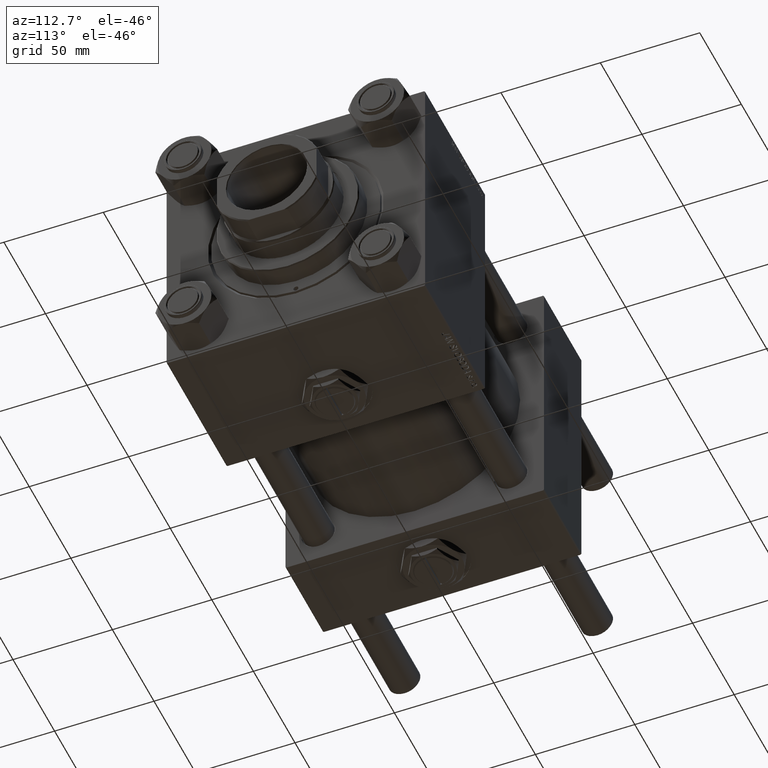
[diagram: clean part render]
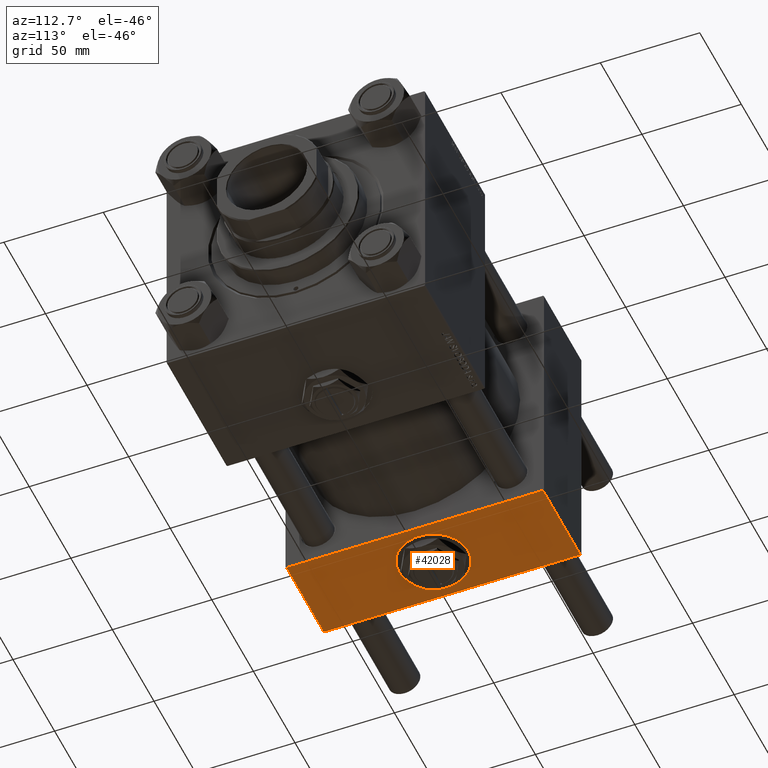
[diagram: same view with one face highlighted and labeled with its STEP entity id]
A machine part, auxiliary view. The second image highlights one B-rep face of the part: STEP entity #42028.
In plain terms, the highlighted planar face has unit normal (0, 0, -1).
Its self-contained STEP definition (entity closure, byte-faithful):
#16 = DIRECTION ( 'NONE',  ( 0.000000000000000000, -1.000000000000000000, -1.067522139062650425E-16 ) ) ;
#889 = CARTESIAN_POINT ( 'NONE',  ( 45.00000000000000000, 65.00000000000000000, -64.99999999999998579 ) ) ;
#2243 = ORIENTED_EDGE ( 'NONE', *, *, #24690, .T. ) ;
#3094 = CARTESIAN_POINT ( 'NONE',  ( 22.50000000000000000, 5.469317744930406600E-15, -65.00000000000000000 ) ) ;
#3861 = AXIS2_PLACEMENT_3D ( 'NONE', #35140, #19704, #30878 ) ;
#5043 = LINE ( 'NONE', #16995, #34129 ) ;
#8777 = ORIENTED_EDGE ( 'NONE', *, *, #45422, .T. ) ;
#10352 = ORIENTED_EDGE ( 'NONE', *, *, #41574, .F. ) ;
#10539 = CARTESIAN_POINT ( 'NONE',  ( 45.00000000000000000, 65.00000000000000000, -64.99999999999998579 ) ) ;
#10804 = DIRECTION ( 'NONE',  ( 0.000000000000000000, 1.000000000000000000, 1.067522139062650548E-16 ) ) ;
#11730 = EDGE_CURVE ( 'NONE', #27193, #30542, #5043, .T. ) ;
#11772 = FACE_BOUND ( 'NONE', #35198, .T. ) ;
#13114 = LINE ( 'NONE', #889, #23611 ) ;
#14798 = DIRECTION ( 'NONE',  ( 0.000000000000000000, 1.067522139062650548E-16, -1.000000000000000000 ) ) ;
#16211 = LINE ( 'NONE', #25484, #37948 ) ;
#16267 = CARTESIAN_POINT ( 'NONE',  ( 45.00000000000000000, 64.49999999999997158, -64.99999999999998579 ) ) ;
#16995 = CARTESIAN_POINT ( 'NONE',  ( 0.000000000000000000, -64.49999999999994316, -65.00000000000000000 ) ) ;
#18542 = CIRCLE ( 'NONE', #32084, 17.50000000000000355 ) ;
#19457 = LINE ( 'NONE', #48390, #42878 ) ;
#19704 = DIRECTION ( 'NONE',  ( 0.000000000000000000, -1.734723475976806848E-16, -1.000000000000000000 ) ) ;
#21746 = EDGE_CURVE ( 'NONE', #46350, #39007, #31829, .T. ) ;
#23611 = VECTOR ( 'NONE', #46541, 1000.000000000000000 ) ;
#23952 = VERTEX_POINT ( 'NONE', #31403 ) ;
#24690 = EDGE_CURVE ( 'NONE', #23952, #24795, #19457, .T. ) ;
#24744 = CARTESIAN_POINT ( 'NONE',  ( 22.50000000000000355, -17.49999999999999645, -65.00000000000000000 ) ) ;
#24795 = VERTEX_POINT ( 'NONE', #16267 ) ;
#25009 = ORIENTED_EDGE ( 'NONE', *, *, #21746, .F. ) ;
#25246 = CARTESIAN_POINT ( 'NONE',  ( 45.00000000000000000, -64.49999999999994316, -65.00000000000000000 ) ) ;
#25484 = CARTESIAN_POINT ( 'NONE',  ( 0.000000000000000000, 65.00000000000000000, -64.99999999999998579 ) ) ;
#26005 = EDGE_LOOP ( 'NONE', ( #10352, #2243, #8777, #31850 ) ) ;
#27193 = VERTEX_POINT ( 'NONE', #25246 ) ;
#27266 = DIRECTION ( 'NONE',  ( 0.000000000000000000, 1.000000000000000000, 0.000000000000000000 ) ) ;
#27416 = CARTESIAN_POINT ( 'NONE',  ( 22.50000000000000000, 17.50000000000001066, -65.00000000000000000 ) ) ;
#27532 = DIRECTION ( 'NONE',  ( 0.000000000000000000, -1.734723475976806848E-16, -1.000000000000000000 ) ) ;
#27972 = PLANE ( 'NONE',  #32816 ) ;
#30542 = VERTEX_POINT ( 'NONE', #49352 ) ;
#30878 = DIRECTION ( 'NONE',  ( 0.000000000000000000, 1.000000000000000000, 0.000000000000000000 ) ) ;
#30974 = FACE_OUTER_BOUND ( 'NONE', #26005, .T. ) ;
#31403 = CARTESIAN_POINT ( 'NONE',  ( 0.000000000000000000, 64.49999999999997158, -64.99999999999998579 ) ) ;
#31829 = CIRCLE ( 'NONE', #3861, 17.50000000000000355 ) ;
#31850 = ORIENTED_EDGE ( 'NONE', *, *, #11730, .T. ) ;
#32084 = AXIS2_PLACEMENT_3D ( 'NONE', #3094, #27532, #27266 ) ;
#32816 = AXIS2_PLACEMENT_3D ( 'NONE', #10539, #14798, #10804 ) ;
#34129 = VECTOR ( 'NONE', #44868, 1000.000000000000000 ) ;
#34254 = ORIENTED_EDGE ( 'NONE', *, *, #45015, .F. ) ;
#35140 = CARTESIAN_POINT ( 'NONE',  ( 22.50000000000000000, 5.469317744930406600E-15, -65.00000000000000000 ) ) ;
#35198 = EDGE_LOOP ( 'NONE', ( #25009, #34254 ) ) ;
#37948 = VECTOR ( 'NONE', #16, 1000.000000000000000 ) ;
#39007 = VERTEX_POINT ( 'NONE', #24744 ) ;
#39402 = DIRECTION ( 'NONE',  ( 1.000000000000000000, 0.000000000000000000, 0.000000000000000000 ) ) ;
#41574 = EDGE_CURVE ( 'NONE', #23952, #30542, #16211, .T. ) ;
#42028 = ADVANCED_FACE ( 'NONE', ( #11772, #30974 ), #27972, .T. ) ;
#42878 = VECTOR ( 'NONE', #39402, 1000.000000000000000 ) ;
#44868 = DIRECTION ( 'NONE',  ( -1.000000000000000000, 0.000000000000000000, 0.000000000000000000 ) ) ;
#45015 = EDGE_CURVE ( 'NONE', #39007, #46350, #18542, .T. ) ;
#45422 = EDGE_CURVE ( 'NONE', #24795, #27193, #13114, .T. ) ;
#46350 = VERTEX_POINT ( 'NONE', #27416 ) ;
#46541 = DIRECTION ( 'NONE',  ( 0.000000000000000000, -1.000000000000000000, -1.067522139062650425E-16 ) ) ;
#48390 = CARTESIAN_POINT ( 'NONE',  ( 45.00000000000000000, 64.49999999999997158, -64.99999999999998579 ) ) ;
#49352 = CARTESIAN_POINT ( 'NONE',  ( 0.000000000000000000, -64.49999999999994316, -65.00000000000000000 ) ) ;